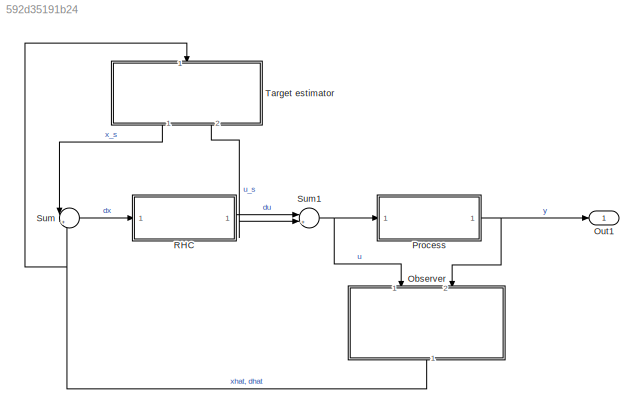
MODEL slx_592d35191b24
KIND model
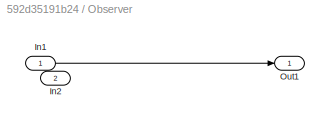
BLOCK [SubSystem] Observer
  FunctionWithSeparateData = off
  MaskHideContents = off
  MinAlgLoopOccurrences = off
  Opaque = off
  Ports = [2, 1]
  PropExecContextOutsideSubsystem = off
  RTWSystemCode = Auto
  RequestExecContextInheritance = off
BLOCK [Inport] Observer/In1
  IconDisplay = Port number
BLOCK [Inport] Observer/In2
  IconDisplay = Port number
  Port = 2
BLOCK [Outport] Observer/Out1
  IconDisplay = Port number
BLOCK [Outport] Out1
  IconDisplay = Port number
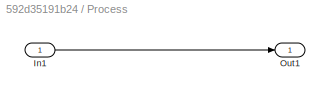
BLOCK [SubSystem] Process
  FunctionWithSeparateData = off
  MaskHideContents = off
  MinAlgLoopOccurrences = off
  Opaque = off
  Ports = [1, 1]
  PropExecContextOutsideSubsystem = off
  RTWSystemCode = Auto
  RequestExecContextInheritance = off
BLOCK [Inport] Process/In1
  IconDisplay = Port number
BLOCK [Outport] Process/Out1
  IconDisplay = Port number
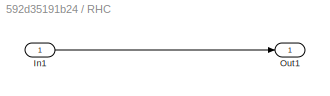
BLOCK [SubSystem] RHC
  FunctionWithSeparateData = off
  MaskHideContents = off
  MinAlgLoopOccurrences = off
  Opaque = off
  Ports = [1, 1]
  PropExecContextOutsideSubsystem = off
  RTWSystemCode = Auto
  RequestExecContextInheritance = off
BLOCK [Inport] RHC/In1
  IconDisplay = Port number
BLOCK [Outport] RHC/Out1
  IconDisplay = Port number
BLOCK [Sum] Sum
  IconShape = round
  InputSameDT = off
  Inputs = |++
  OutDataTypeStr = Inherit: Inherit via internal rule
  Ports = [2, 1]
  SaturateOnIntegerOverflow = off
BLOCK [Sum] Sum1
  IconShape = round
  InputSameDT = off
  Inputs = |++
  OutDataTypeStr = Inherit: Inherit via internal rule
  Ports = [2, 1]
  SaturateOnIntegerOverflow = off
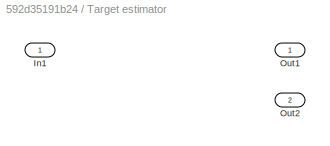
BLOCK [SubSystem] Target estimator
  FunctionWithSeparateData = off
  MaskHideContents = off
  MinAlgLoopOccurrences = off
  Opaque = off
  Ports = [1, 2]
  PropExecContextOutsideSubsystem = off
  RTWSystemCode = Auto
  RequestExecContextInheritance = off
BLOCK [Inport] Target estimator/In1
  IconDisplay = Port number
BLOCK [Outport] Target estimator/Out1
  IconDisplay = Port number
BLOCK [Outport] Target estimator/Out2
  IconDisplay = Port number
  Port = 2
LINE Observer/In1:1 -> Observer/Out1:1
NET Observer:1 -> Sum:2, Target estimator:1
LINE Process/In1:1 -> Process/Out1:1
NET Process:1 -> Observer:2, Out1:1
LINE RHC/In1:1 -> RHC/Out1:1
LINE RHC:1 -> Sum1:1
NET Sum1:1 -> Observer:1, Process:1
LINE Sum:1 -> RHC:1
LINE Target estimator:1 -> Sum:1
LINE Target estimator:2 -> Sum1:2
note: NET lines group one-source signal fan-out (src -> all destinations, sorted); 1:1 wires keep LINE
